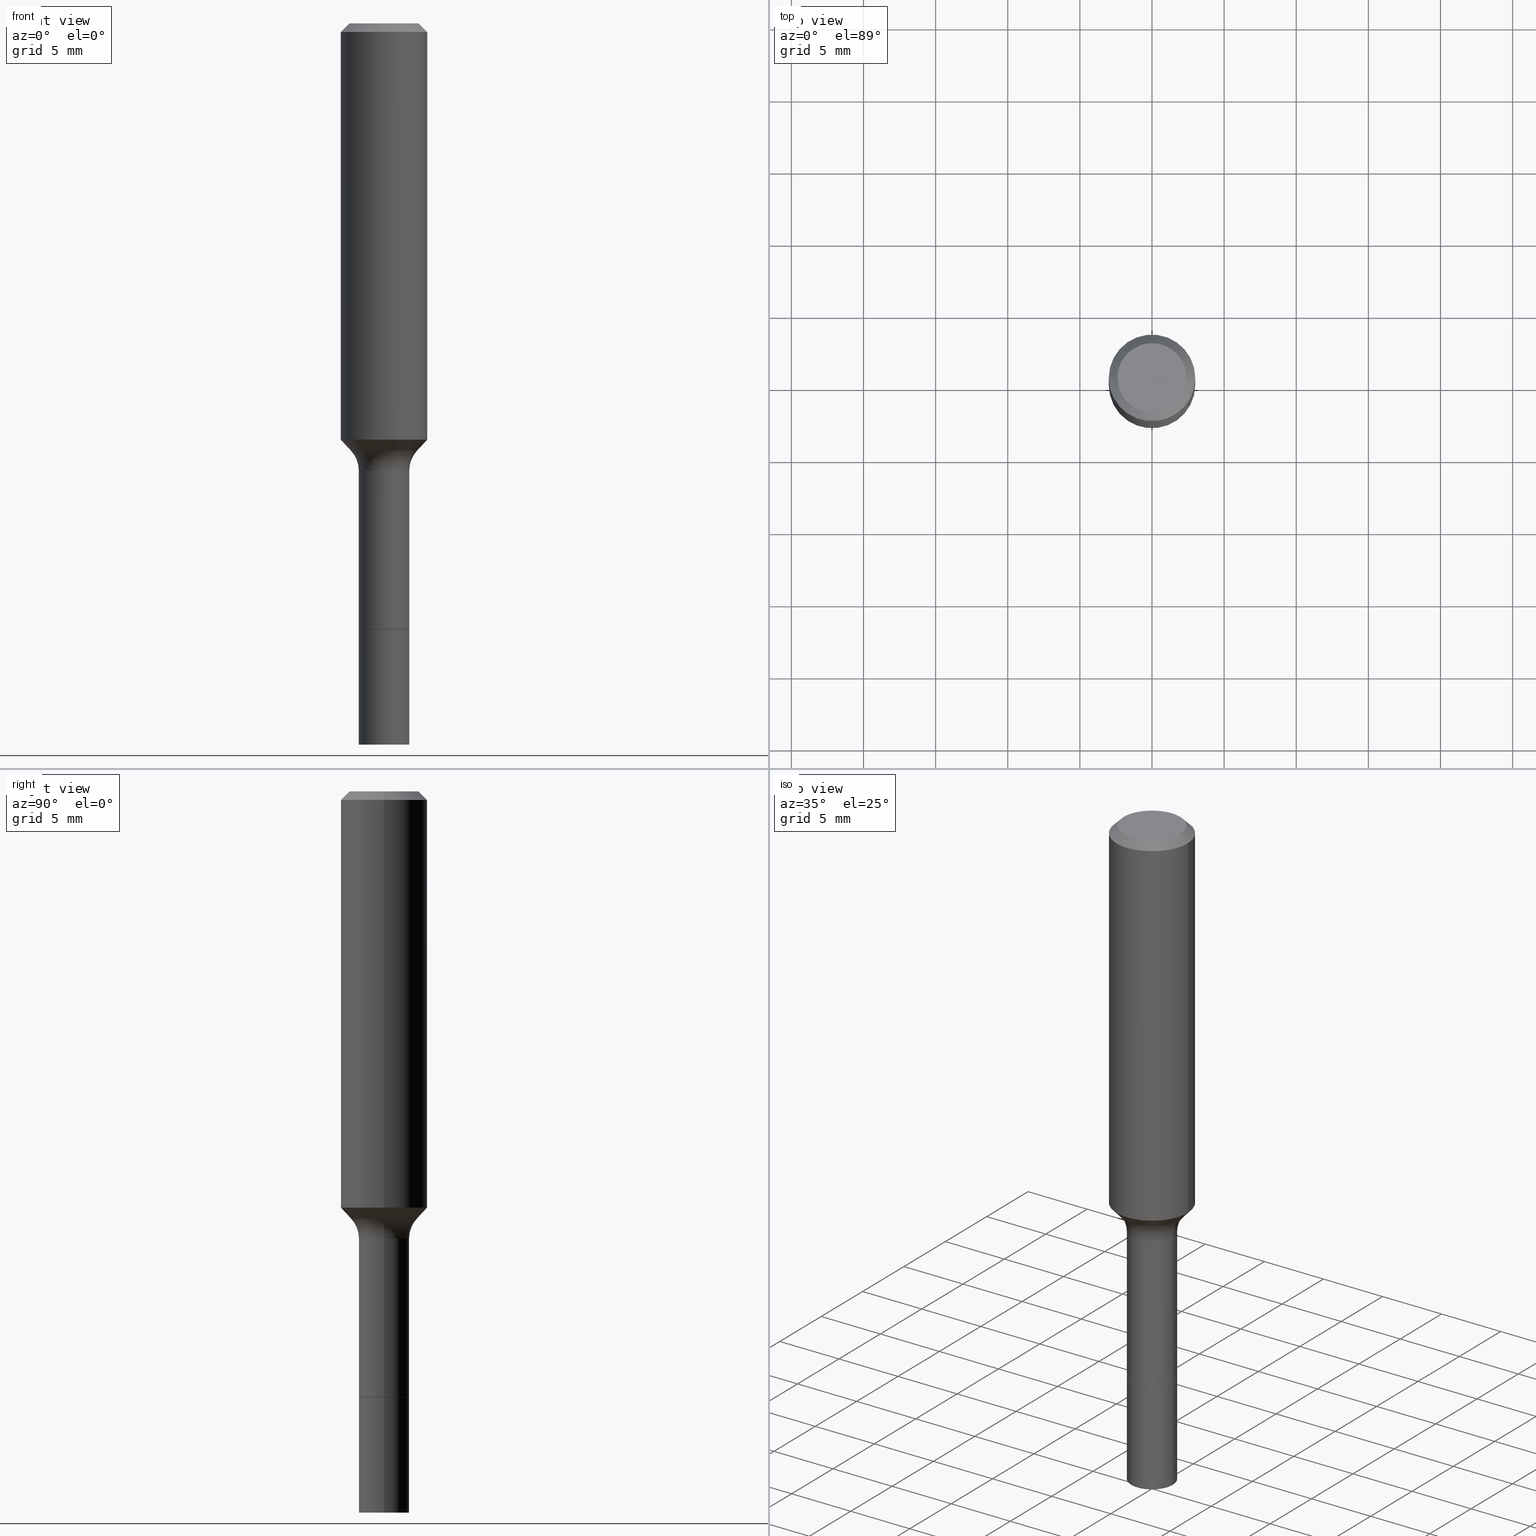
[diagram: canonical four-view strip — front | top / right | iso, engineering-drawing reading convention]
A machine part, canonical four-view strip (front | top / right | iso — engineering-drawing reading convention). The complete STEP part file that produces these views, byte-faithful:
ISO-10303-21;
HEADER;
FILE_DESCRIPTION (( 'STEP AP203' ),
    '1' );
FILE_NAME ('67080.STEP',
    '2025-04-01T15:27:49',
    ( '' ),
    ( '' ),
    'SwSTEP 2.0',
    'SolidWorks 2024',
    '' );
FILE_SCHEMA (( 'CONFIG_CONTROL_DESIGN' ));
ENDSEC;

DATA;
#1 = ORIENTED_EDGE ( 'NONE', *, *, #37, .F. ) ;
#2 = AXIS2_PLACEMENT_3D ( 'NONE', #446, #323, #363 ) ;
#3 = DIRECTION ( 'NONE',  ( 2.438088387897960049E-29, -3.491481338843145188E-15, -1.000000000000000000 ) ) ;
#4 = LOCAL_TIME ( 11, 27, 49.00000000000000000, #188 ) ;
#5 = ORIENTED_EDGE ( 'NONE', *, *, #37, .T. ) ;
#6 = FACE_OUTER_BOUND ( 'NONE', #489, .T. ) ;
#7 = CARTESIAN_POINT ( 'NONE',  ( 0.1180999999999999966, -9.071566814582237199E-16, -0.02362000000000014435 ) ) ;
#8 = ADVANCED_FACE ( 'NONE', ( #260 ), #307, .T. ) ;
#9 = ADVANCED_FACE ( 'NONE', ( #427 ), #217, .T. ) ;
#10 = ORIENTED_EDGE ( 'NONE', *, *, #152, .T. ) ;
#11 = DIRECTION ( 'NONE',  ( 1.000000000000000000, -6.982962677686273810E-15, 0.000000000000000000 ) ) ;
#12 = DESIGN_CONTEXT ( 'detailed design', #294, 'design' ) ;
#13 = CIRCLE ( 'NONE', #172, 0.1180999999999999966 ) ;
#14 = CC_DESIGN_APPROVAL ( #444, ( #251 ) ) ;
#15 = LINE ( 'NONE', #315, #287 ) ;
#16 = DIRECTION ( 'NONE',  ( 1.000000000000000000, -6.982962677686273810E-15, 0.000000000000000000 ) ) ;
#17 = CYLINDRICAL_SURFACE ( 'NONE', #451, 0.06889999999999997515 ) ;
#18 = PRODUCT ( '67080', '67080', '', ( #183 ) ) ;
#19 = CARTESIAN_POINT ( 'NONE',  ( 2.984694677948959472E-29, -4.261352974058059028E-15, -1.220499999999999918 ) ) ;
#20 = DIRECTION ( 'NONE',  ( -2.445468806185136597E-29, 3.491481338843145583E-15, 1.000000000000000000 ) ) ;
#21 = APPROVAL_ROLE ( '' ) ;
#22 = APPLICATION_CONTEXT ( 'configuration controlled 3d designs of mechanical parts and assemblies' ) ;
#23 = DIRECTION ( 'NONE',  ( -2.445468806185136877E-29, 3.491481338843145188E-15, 1.000000000000000000 ) ) ;
#24 = DIRECTION ( 'NONE',  ( -1.000000000000000000, 6.982962677686266711E-15, 0.000000000000000000 ) ) ;
#25 = CARTESIAN_POINT ( 'NONE',  ( 4.042359936624030960E-29, -5.771418653107719568E-15, -1.653000000000000025 ) ) ;
#26 = AXIS2_PLACEMENT_3D ( 'NONE', #111, #440, #288 ) ;
#27 = DATE_AND_TIME ( #327, #386 ) ;
#28 = UNCERTAINTY_MEASURE_WITH_UNIT (LENGTH_MEASURE( 1.000000000000000082E-05 ), #381, 'distance_accuracy_value', 'NONE');
#29 = EDGE_CURVE ( 'NONE', #433, #173, #382, .T. ) ;
#30 = CARTESIAN_POINT ( 'NONE',  ( 0.06840000000000000246, -6.250799040930883381E-15, -1.653500000000000192 ) ) ;
#31 = CC_DESIGN_APPROVAL ( #518, ( #324 ) ) ;
#32 = AXIS2_PLACEMENT_3D ( 'NONE', #53, #488, #212 ) ;
#33 = CARTESIAN_POINT ( 'NONE',  ( 0.000000000000000000, 0.000000000000000000, 0.000000000000000000 ) ) ;
#34 = LOCAL_TIME ( 11, 27, 49.00000000000000000, #185 ) ;
#35 = PERSON_AND_ORGANIZATION_ROLE ( 'classification_officer' ) ;
#36 = DIRECTION ( 'NONE',  ( 1.000000000000000000, -6.982962677686267499E-15, 4.875432709231658792E-29 ) ) ;
#37 = EDGE_CURVE ( 'NONE', #275, #219, #176, .T. ) ;
#38 = ORIENTED_EDGE ( 'NONE', *, *, #203, .T. ) ;
#39 = ORIENTED_EDGE ( 'NONE', *, *, #196, .T. ) ;
#40 = CARTESIAN_POINT ( 'NONE',  ( -0.06890000000000001679, -4.526821868644179362E-15, -1.653000000000000025 ) ) ;
#41 = VERTEX_POINT ( 'NONE', #106 ) ;
#42 = CC_DESIGN_DATE_AND_TIME_ASSIGNMENT ( #27, #477, ( #324 ) ) ;
#43 = FACE_OUTER_BOUND ( 'NONE', #422, .T. ) ;
#44 = ORIENTED_EDGE ( 'NONE', *, *, #203, .F. ) ;
#45 = CYLINDRICAL_SURFACE ( 'NONE', #149, 0.06890000000000007230 ) ;
#46 = ORIENTED_EDGE ( 'NONE', *, *, #286, .T. ) ;
#47 = AXIS2_PLACEMENT_3D ( 'NONE', #268, #178, #143 ) ;
#48 = DIRECTION ( 'NONE',  ( -2.445468806185136597E-29, 3.491481338843145583E-15, 1.000000000000000000 ) ) ;
#49 = ADVANCED_FACE ( 'NONE', ( #431 ), #138, .F. ) ;
#50 = ADVANCED_FACE ( 'NONE', ( #102 ), #72, .T. ) ;
#51 = DIRECTION ( 'NONE',  ( 2.445468806185136597E-29, -3.491481338843145583E-15, -1.000000000000000000 ) ) ;
#52 = DIRECTION ( 'NONE',  ( -2.445468806185136597E-29, 3.491481338843145583E-15, 1.000000000000000000 ) ) ;
#53 = CARTESIAN_POINT ( 'NONE',  ( 4.813905344975441835E-29, -6.872981015512731707E-15, -1.968500000000000139 ) ) ;
#54 = ORIENTED_EDGE ( 'NONE', *, *, #234, .F. ) ;
#55 = CARTESIAN_POINT ( 'NONE',  ( 4.813905344975441835E-29, -6.872981015512731707E-15, -1.968500000000000139 ) ) ;
#56 =( NAMED_UNIT ( * ) PLANE_ANGLE_UNIT ( ) SI_UNIT ( $, .RADIAN. ) );
#57 = DIRECTION ( 'NONE',  ( 1.000000000000000000, -6.982962677686267499E-15, 4.876176775795935793E-29 ) ) ;
#58 = CARTESIAN_POINT ( 'NONE',  ( 0.06889999999999996128, -4.742479102550642766E-15, -1.220499999999999918 ) ) ;
#59 = FACE_OUTER_BOUND ( 'NONE', #392, .T. ) ;
#60 = AXIS2_PLACEMENT_3D ( 'NONE', #222, #51, #347 ) ;
#61 = APPROVAL_DATE_TIME ( #270, #247 ) ;
#62 = AXIS2_PLACEMENT_3D ( 'NONE', #313, #107, #393 ) ;
#63 = DIRECTION ( 'NONE',  ( -2.445468806185136877E-29, 3.491481338843145188E-15, 1.000000000000000000 ) ) ;
#64 = DIRECTION ( 'NONE',  ( 1.000000000000000000, -6.982962677686267499E-15, 0.000000000000000000 ) ) ;
#65 = DIRECTION ( 'NONE',  ( 0.000000000000000000, 0.000000000000000000, 1.000000000000000000 ) ) ;
#66 = VERTEX_POINT ( 'NONE', #58 ) ;
#67 = CARTESIAN_POINT ( 'NONE',  ( 5.776197320209328408E-31, -8.246878922347560526E-17, -0.02362000000000014435 ) ) ;
#68 = DIRECTION ( 'NONE',  ( -2.445468806185136877E-29, 3.491481338843145188E-15, 1.000000000000000000 ) ) ;
#69 = CARTESIAN_POINT ( 'NONE',  ( 0.1180999999999999966, -8.926936027602933910E-16, -0.02362000000000014435 ) ) ;
#70 = DIRECTION ( 'NONE',  ( -0.7071067811865460184, 2.468850131082241283E-15, -0.7071067811865490160 ) ) ;
#71 = EDGE_CURVE ( 'NONE', #151, #66, #15, .T. ) ;
#72 = CONICAL_SURFACE ( 'NONE', #47, 0.06840000000000000246, 0.7853981633972946241 ) ;
#73 = VECTOR ( 'NONE', #514, 39.37007874015748143 ) ;
#74 = CC_DESIGN_PERSON_AND_ORGANIZATION_ASSIGNMENT ( #388, #316, ( #264 ) ) ;
#75 = DIRECTION ( 'NONE',  ( 7.105427357601001859E-15, 1.000000000000000000, -3.491481338843145583E-15 ) ) ;
#76 = DIRECTION ( 'NONE',  ( -2.445468806185136597E-29, 3.491481338843145583E-15, 1.000000000000000000 ) ) ;
#77 = CC_DESIGN_SECURITY_CLASSIFICATION ( #324, ( #251 ) ) ;
#78 = CIRCLE ( 'NONE', #474, 0.09447999999999998066 ) ;
#79 = DIRECTION ( 'NONE',  ( -2.445468806185136597E-29, 3.491481338843145583E-15, 1.000000000000000000 ) ) ;
#80 = ORIENTED_EDGE ( 'NONE', *, *, #406, .T. ) ;
#81 = DIRECTION ( 'NONE',  ( -2.445468806185136597E-29, 3.491481338843145583E-15, 1.000000000000000000 ) ) ;
#82 = ORIENTED_EDGE ( 'NONE', *, *, #375, .T. ) ;
#83 = DIRECTION ( 'NONE',  ( -2.445468806185136597E-29, 3.491481338843145583E-15, 1.000000000000000000 ) ) ;
#84 = EDGE_CURVE ( 'NONE', #66, #173, #352, .T. ) ;
#85 = VECTOR ( 'NONE', #255, 39.37007874015748854 ) ;
#86 = ORIENTED_EDGE ( 'NONE', *, *, #426, .F. ) ;
#87 = DIRECTION ( 'NONE',  ( 1.000000000000000000, -6.982962677686269077E-15, 0.000000000000000000 ) ) ;
#88 = ORIENTED_EDGE ( 'NONE', *, *, #340, .T. ) ;
#89 = DIRECTION ( 'NONE',  ( -2.445468806185136597E-29, 3.491481338843145583E-15, 1.000000000000000000 ) ) ;
#90 = ORIENTED_EDGE ( 'NONE', *, *, #182, .T. ) ;
#91 = DIRECTION ( 'NONE',  ( 1.000000000000000000, -6.982962677686262766E-15, 0.000000000000000000 ) ) ;
#92 = EDGE_CURVE ( 'NONE', #310, #500, #365, .T. ) ;
#93 = DIRECTION ( 'NONE',  ( -2.445468806185136597E-29, 3.491481338843145583E-15, 1.000000000000000000 ) ) ;
#94 = ORIENTED_EDGE ( 'NONE', *, *, #356, .F. ) ;
#95 = AXIS2_PLACEMENT_3D ( 'NONE', #378, #419, #410 ) ;
#96 = AXIS2_PLACEMENT_3D ( 'NONE', #413, #490, #126 ) ;
#97 = ORIENTED_EDGE ( 'NONE', *, *, #394, .T. ) ;
#98 = APPLICATION_PROTOCOL_DEFINITION ( 'international standard', 'config_control_design', 1994, #294 ) ;
#99 = DIRECTION ( 'NONE',  ( -2.445468806185136597E-29, 3.491481338843145583E-15, 1.000000000000000000 ) ) ;
#100 = CALENDAR_DATE ( 2025, 1, 4 ) ;
#101 = ADVANCED_FACE ( 'NONE', ( #411 ), #160, .T. ) ;
#102 = FACE_OUTER_BOUND ( 'NONE', #339, .T. ) ;
#103 = VECTOR ( 'NONE', #497, 39.37007874015748143 ) ;
#104 =( NAMED_UNIT ( * ) SI_UNIT ( $, .STERADIAN. ) SOLID_ANGLE_UNIT ( ) );
#105 = AXIS2_PLACEMENT_3D ( 'NONE', #135, #93, #87 ) ;
#106 = CARTESIAN_POINT ( 'NONE',  ( -0.1181000000000001354, -3.127963074443632070E-15, -1.136226621417590010 ) ) ;
#107 = DIRECTION ( 'NONE',  ( -2.445468806185136597E-29, 3.491481338843145583E-15, 1.000000000000000000 ) ) ;
#108 =( LENGTH_UNIT ( ) NAMED_UNIT ( * ) SI_UNIT ( $, .METRE. ) );
#109 = EDGE_CURVE ( 'NONE', #292, #439, #367, .T. ) ;
#110 = ADVANCED_FACE ( 'NONE', ( #280 ), #284, .F. ) ;
#111 = CARTESIAN_POINT ( 'NONE',  ( 3.772893820736570314E-46, -5.386692455541008845E-32, -1.542810037565835988E-17 ) ) ;
#112 = AXIS2_PLACEMENT_3D ( 'NONE', #33, #325, #278 ) ;
#113 = DIRECTION ( 'NONE',  ( 1.000000000000000000, -6.982962677686266711E-15, 0.000000000000000000 ) ) ;
#114 = CARTESIAN_POINT ( 'NONE',  ( 4.043582671027123762E-29, -5.773164393777141860E-15, -1.653500000000000192 ) ) ;
#115 = FACE_OUTER_BOUND ( 'NONE', #515, .T. ) ;
#116 = DATE_AND_TIME ( #442, #290 ) ;
#117 = AXIS2_PLACEMENT_3D ( 'NONE', #19, #235, #360 ) ;
#118 = APPROVAL_DATE_TIME ( #116, #518 ) ;
#119 = DIRECTION ( 'NONE',  ( -0.6819983600624967002, 7.399397606724278688E-15, 0.7313537016191720141 ) ) ;
#120 = ORIENTED_EDGE ( 'NONE', *, *, #84, .F. ) ;
#121 = CARTESIAN_POINT ( 'NONE',  ( 2.851270220716778580E-29, -4.070858210275671756E-15, -1.165940131195000173 ) ) ;
#122 = LINE ( 'NONE', #374, #289 ) ;
#123 = ADVANCED_FACE ( 'NONE', ( #389 ), #17, .T. ) ;
#124 = MANIFOLD_SOLID_BREP ( 'Body-Move/Copy2[2]', #317 ) ;
#125 = ORIENTED_EDGE ( 'NONE', *, *, #234, .T. ) ;
#126 = DIRECTION ( 'NONE',  ( 1.000000000000000000, -6.982962677686265922E-15, 4.876176775795935793E-29 ) ) ;
#127 = MANIFOLD_SOLID_BREP ( 'Body-Move/Copy2[1]', #147 ) ;
#128 = AXIS2_PLACEMENT_3D ( 'NONE', #226, #99, #11 ) ;
#129 = CIRCLE ( 'NONE', #2, 0.08000000000000000167 ) ;
#130 = VERTEX_POINT ( 'NONE', #481 ) ;
#131 = ORGANIZATION ( 'UNSPECIFIED', 'UNSPECIFIED', '' ) ;
#132 = DIRECTION ( 'NONE',  ( 1.000000000000000000, -6.982962677686269866E-15, 0.000000000000000000 ) ) ;
#133 = ADVANCED_FACE ( 'NONE', ( #6 ), #230, .T. ) ;
#134 = ORIENTED_EDGE ( 'NONE', *, *, #204, .T. ) ;
#135 = CARTESIAN_POINT ( 'NONE',  ( 2.778606759433844860E-29, -3.967114045376311056E-15, -1.136226621417590010 ) ) ;
#136 = ORIENTED_EDGE ( 'NONE', *, *, #475, .T. ) ;
#137 = DIRECTION ( 'NONE',  ( 1.000000000000000000, -6.982962677686266711E-15, 0.000000000000000000 ) ) ;
#138 = TOROIDAL_SURFACE ( 'NONE', #466, 0.1488999999999999491, 0.08000000000000000167 ) ;
#139 = ORIENTED_EDGE ( 'NONE', *, *, #415, .F. ) ;
#140 = FACE_OUTER_BOUND ( 'NONE', #364, .T. ) ;
#141 = ORIENTED_EDGE ( 'NONE', *, *, #84, .T. ) ;
#142 = CC_DESIGN_PERSON_AND_ORGANIZATION_ASSIGNMENT ( #285, #35, ( #324 ) ) ;
#143 = DIRECTION ( 'NONE',  ( 1.000000000000000000, -6.982962677686273810E-15, 0.000000000000000000 ) ) ;
#144 = PERSON_AND_ORGANIZATION ( #242, #131 ) ;
#145 = EDGE_LOOP ( 'NONE', ( #249, #86, #494, #136 ) ) ;
#146 = DIRECTION ( 'NONE',  ( -2.445468806185136597E-29, 3.491481338843145583E-15, 1.000000000000000000 ) ) ;
#147 = CLOSED_SHELL ( 'NONE', ( #166, #395, #387, #110 ) ) ;
#148 = CARTESIAN_POINT ( 'NONE',  ( 0.000000000000000000, 0.000000000000000000, 0.000000000000000000 ) ) ;
#149 = AXIS2_PLACEMENT_3D ( 'NONE', #262, #83, #253 ) ;
#150 = EDGE_CURVE ( 'NONE', #500, #433, #450, .T. ) ;
#151 = VERTEX_POINT ( 'NONE', #257 ) ;
#152 = EDGE_CURVE ( 'NONE', #213, #41, #409, .T. ) ;
#153 = DIRECTION ( 'NONE',  ( -2.445468806185136597E-29, 3.491481338843145583E-15, 1.000000000000000000 ) ) ;
#154 = DIRECTION ( 'NONE',  ( 0.7071067811865460184, -7.319954787623251312E-15, -0.7071067811865490160 ) ) ;
#155 = DIRECTION ( 'NONE',  ( 1.000000000000000000, -6.982962677686273810E-15, 0.000000000000000000 ) ) ;
#156 = COORDINATED_UNIVERSAL_TIME_OFFSET ( 5, 0, .BEHIND. ) ;
#157 = CARTESIAN_POINT ( 'NONE',  ( 7.545787641473140628E-46, -1.077338491108201769E-31, -3.085620075131671975E-17 ) ) ;
#158 = CIRCLE ( 'NONE', #32, 0.06890000000000012781 ) ;
#159 = DIRECTION ( 'NONE',  ( 2.445468806185136597E-29, -3.491481338843145583E-15, -1.000000000000000000 ) ) ;
#160 = CYLINDRICAL_SURFACE ( 'NONE', #112, 0.1181000000000000660 ) ;
#161 = PERSON_AND_ORGANIZATION ( #242, #131 ) ;
#162 = SECURITY_CLASSIFICATION_LEVEL ( 'unclassified' ) ;
#163 = VECTOR ( 'NONE', #154, 39.37007874015748143 ) ;
#164 = EDGE_CURVE ( 'NONE', #500, #310, #437, .T. ) ;
#165 = ORIENTED_EDGE ( 'NONE', *, *, #298, .T. ) ;
#166 = ADVANCED_FACE ( 'NONE', ( #140 ), #350, .T. ) ;
#167 = DIRECTION ( 'NONE',  ( -2.445468806185136597E-29, 3.491481338843145583E-15, 1.000000000000000000 ) ) ;
#168 = EDGE_LOOP ( 'NONE', ( #301, #458 ) ) ;
#169 = FACE_OUTER_BOUND ( 'NONE', #168, .T. ) ;
#170 = EDGE_LOOP ( 'NONE', ( #372, #233, #80, #54 ) ) ;
#171 = FACE_OUTER_BOUND ( 'NONE', #512, .T. ) ;
#172 = AXIS2_PLACEMENT_3D ( 'NONE', #398, #81, #113 ) ;
#173 = VERTEX_POINT ( 'NONE', #501 ) ;
#174 = EDGE_LOOP ( 'NONE', ( #39, #82 ) ) ;
#175 = CARTESIAN_POINT ( 'NONE',  ( 2.851270220716778580E-29, -4.070858210275671756E-15, -1.165940131195000173 ) ) ;
#176 = LINE ( 'NONE', #469, #103 ) ;
#177 = DIRECTION ( 'NONE',  ( 1.000000000000000000, 0.000000000000000000, 0.000000000000000000 ) ) ;
#178 = DIRECTION ( 'NONE',  ( -2.445468806185136597E-29, 3.491481338843145583E-15, 1.000000000000000000 ) ) ;
#179 = DIRECTION ( 'NONE',  ( 1.000000000000000000, -6.982962677686265922E-15, 0.000000000000000000 ) ) ;
#180 = CIRCLE ( 'NONE', #503, 0.08000000000000000167 ) ;
#181 = AXIS2_PLACEMENT_3D ( 'NONE', #335, #89, #192 ) ;
#182 = EDGE_CURVE ( 'NONE', #275, #449, #328, .T. ) ;
#183 = MECHANICAL_CONTEXT ( 'NONE', #22, 'mechanical' ) ;
#184 = ORIENTED_EDGE ( 'NONE', *, *, #394, .F. ) ;
#185 = COORDINATED_UNIVERSAL_TIME_OFFSET ( 5, 0, .BEHIND. ) ;
#186 = ORIENTED_EDGE ( 'NONE', *, *, #182, .F. ) ;
#187 = CARTESIAN_POINT ( 'NONE',  ( 4.043582671027123201E-29, -5.773164393777141072E-15, -1.653499999999999970 ) ) ;
#188 = COORDINATED_UNIVERSAL_TIME_OFFSET ( 5, 0, .BEHIND. ) ;
#189 = ADVANCED_FACE ( 'NONE', ( #276 ), #361, .T. ) ;
#190 = EDGE_LOOP ( 'NONE', ( #517, #134, #229, #139 ) ) ;
#191 = CARTESIAN_POINT ( 'NONE',  ( 4.042359936624030960E-29, -5.771418653107719568E-15, -1.653000000000000025 ) ) ;
#192 = DIRECTION ( 'NONE',  ( 1.000000000000000000, -6.982962677686266711E-15, 4.876176775795936353E-29 ) ) ;
#193 = AXIS2_PLACEMENT_3D ( 'NONE', #67, #159, #24 ) ;
#194 = PERSON_AND_ORGANIZATION_ROLE ( 'creator' ) ;
#195 = DATE_AND_TIME ( #403, #4 ) ;
#196 = EDGE_CURVE ( 'NONE', #329, #219, #246, .T. ) ;
#197 = CARTESIAN_POINT ( 'NONE',  ( 2.984694677948959472E-29, -4.261352974058059028E-15, -1.220499999999999918 ) ) ;
#198 = VECTOR ( 'NONE', #470, 39.37007874015748143 ) ;
#199 = DIRECTION ( 'NONE',  ( -1.000000000000000000, 6.982962677686265922E-15, -4.876176775795935793E-29 ) ) ;
#200 = EDGE_LOOP ( 'NONE', ( #265, #125, #331, #353 ) ) ;
#201 = APPROVAL_ROLE ( '' ) ;
#202 = CARTESIAN_POINT ( 'NONE',  ( 0.09447999999999998066, -7.704367267948738690E-16, -3.085620075131172158E-17 ) ) ;
#203 = EDGE_CURVE ( 'NONE', #449, #329, #319, .T. ) ;
#204 = EDGE_CURVE ( 'NONE', #205, #505, #207, .T. ) ;
#205 = VERTEX_POINT ( 'NONE', #269 ) ;
#206 = CARTESIAN_POINT ( 'NONE',  ( 2.778606759433844860E-29, -3.967114045376311056E-15, -1.136226621417590010 ) ) ;
#207 = CIRCLE ( 'NONE', #62, 0.09039170387046643884 ) ;
#208 = AXIS2_PLACEMENT_3D ( 'NONE', #266, #52, #272 ) ;
#209 = AXIS2_PLACEMENT_3D ( 'NONE', #148, #65, #177 ) ;
#210 = CIRCLE ( 'NONE', #453, 0.1180999999999999966 ) ;
#211 = EDGE_LOOP ( 'NONE', ( #480, #349, #88, #299 ) ) ;
#212 = DIRECTION ( 'NONE',  ( 1.000000000000000000, -6.982962677686267499E-15, 0.000000000000000000 ) ) ;
#213 = VERTEX_POINT ( 'NONE', #434 ) ;
#214 = CARTESIAN_POINT ( 'NONE',  ( 4.813905344975441835E-29, -6.872981015512731707E-15, -1.968500000000000139 ) ) ;
#215 = ORIENTED_EDGE ( 'NONE', *, *, #445, .F. ) ;
#216 = CARTESIAN_POINT ( 'NONE',  ( 0.1181000000000000660, -8.246878922347485584E-16, 5.758764772215003944E-30 ) ) ;
#217 = CONICAL_SURFACE ( 'NONE', #128, 0.06840000000000000246, 0.7853981633972946241 ) ;
#218 = AXIS2_PLACEMENT_3D ( 'NONE', #244, #400, #199 ) ;
#219 = VERTEX_POINT ( 'NONE', #428 ) ;
#220 = CARTESIAN_POINT ( 'NONE',  ( 0.06890000000000000291, -6.254290522269724810E-15, -1.653499999999999970 ) ) ;
#221 = APPROVAL_PERSON_ORGANIZATION ( #358, #518, #201 ) ;
#222 = CARTESIAN_POINT ( 'NONE',  ( 5.776197320209328408E-31, -8.246878922347560526E-17, -0.02362000000000014435 ) ) ;
#223 = DIRECTION ( 'NONE',  ( 1.000000000000000000, -6.982962677686262766E-15, 0.000000000000000000 ) ) ;
#224 = FACE_OUTER_BOUND ( 'NONE', #456, .T. ) ;
#225 = ADVANCED_FACE ( 'NONE', ( #59 ), #492, .T. ) ;
#226 = CARTESIAN_POINT ( 'NONE',  ( 4.043582671027123762E-29, -5.773164393777141860E-15, -1.653500000000000192 ) ) ;
#227 = CARTESIAN_POINT ( 'NONE',  ( 2.851270220716778580E-29, -4.070858210275671756E-15, -1.165940131195000173 ) ) ;
#228 = APPROVAL_STATUS ( 'not_yet_approved' ) ;
#229 = ORIENTED_EDGE ( 'NONE', *, *, #356, .T. ) ;
#230 = CONICAL_SURFACE ( 'NONE', #467, 0.09039170387046643884, 0.7504915783575593080 ) ;
#231 = APPROVAL_PERSON_ORGANIZATION ( #346, #247, #506 ) ;
#232 = LINE ( 'NONE', #314, #468 ) ;
#233 = ORIENTED_EDGE ( 'NONE', *, *, #164, .T. ) ;
#234 = EDGE_CURVE ( 'NONE', #433, #151, #259, .T. ) ;
#235 = DIRECTION ( 'NONE',  ( -2.445468806185136597E-29, 3.491481338843145583E-15, 1.000000000000000000 ) ) ;
#236 = DIRECTION ( 'NONE',  ( -2.445468806185136597E-29, 3.491481338843145583E-15, 1.000000000000000000 ) ) ;
#237 = COORDINATED_UNIVERSAL_TIME_OFFSET ( 5, 0, .BEHIND. ) ;
#238 = CIRCLE ( 'NONE', #513, 0.09039170387046643884 ) ;
#239 = PERSON_AND_ORGANIZATION_ROLE ( 'design_supplier' ) ;
#240 = DIRECTION ( 'NONE',  ( -1.000000000000000000, 7.105427357601005014E-15, 0.000000000000000000 ) ) ;
#241 = CC_DESIGN_PERSON_AND_ORGANIZATION_ASSIGNMENT ( #291, #194, ( #251 ) ) ;
#242 = PERSON ( 'UNSPECIFIED', 'UNSPECIFIED', 'UNSPECIFIED', ('UNSPECIFIED'), ('UNSPECIFIED'), ('UNSPECIFIED') ) ;
#243 = CARTESIAN_POINT ( 'NONE',  ( -0.06890000000000012781, -5.833508759706226453E-15, -1.968500000000000139 ) ) ;
#244 = CARTESIAN_POINT ( 'NONE',  ( 4.043582671027123201E-29, -5.773164393777141072E-15, -1.653499999999999970 ) ) ;
#245 = DIRECTION ( 'NONE',  ( 1.000000000000000000, -6.982962677686267499E-15, 4.883557194083113462E-29 ) ) ;
#246 = CIRCLE ( 'NONE', #493, 0.06890000000000000291 ) ;
#247 = APPROVAL ( #228, 'UNSPECIFIED' ) ;
#248 = EDGE_LOOP ( 'NONE', ( #312, #252, #447, #404 ) ) ;
#249 = ORIENTED_EDGE ( 'NONE', *, *, #109, .F. ) ;
#250 = AXIS2_PLACEMENT_3D ( 'NONE', #206, #405, #418 ) ;
#251 = PRODUCT_DEFINITION_FORMATION_WITH_SPECIFIED_SOURCE ( 'ANY', '', #18, .NOT_KNOWN. ) ;
#252 = ORIENTED_EDGE ( 'NONE', *, *, #305, .T. ) ;
#253 = DIRECTION ( 'NONE',  ( 1.000000000000000000, -6.982962677686273021E-15, 0.000000000000000000 ) ) ;
#254 = ORIENTED_EDGE ( 'NONE', *, *, #322, .F. ) ;
#255 = DIRECTION ( 'NONE',  ( 0.6819983600624967002, -2.208861293262458054E-15, 0.7313537016191720141 ) ) ;
#256 = ORIENTED_EDGE ( 'NONE', *, *, #426, .T. ) ;
#257 = CARTESIAN_POINT ( 'NONE',  ( 0.06890000000000001679, -6.252544781600303306E-15, -1.653000000000000025 ) ) ;
#258 = DIRECTION ( 'NONE',  ( -1.000000000000000000, 6.982962677686265922E-15, -4.876176775795935793E-29 ) ) ;
#259 = CIRCLE ( 'NONE', #309, 0.06890000000000001679 ) ;
#260 = FACE_OUTER_BOUND ( 'NONE', #145, .T. ) ;
#261 = DIRECTION ( 'NONE',  ( -2.445468806185136597E-29, 3.491481338843145583E-15, 1.000000000000000000 ) ) ;
#262 = CARTESIAN_POINT ( 'NONE',  ( 4.043582671027123201E-29, -5.773164393777141072E-15, -1.653499999999999970 ) ) ;
#263 = EDGE_CURVE ( 'NONE', #505, #66, #129, .T. ) ;
#264 = PRODUCT_DEFINITION ( 'UNKNOWN', '', #251, #12 ) ;
#265 = ORIENTED_EDGE ( 'NONE', *, *, #29, .F. ) ;
#266 = CARTESIAN_POINT ( 'NONE',  ( 4.043582671027123201E-29, -5.773164393777141072E-15, -1.653499999999999970 ) ) ;
#267 = PERSON_AND_ORGANIZATION_ROLE ( 'design_owner' ) ;
#268 = CARTESIAN_POINT ( 'NONE',  ( 4.043582671027123762E-29, -5.773164393777141860E-15, -1.653500000000000192 ) ) ;
#269 = CARTESIAN_POINT ( 'NONE',  ( -0.09039170387046635557, -3.428586524694291747E-15, -1.165940131195000173 ) ) ;
#270 = DATE_AND_TIME ( #100, #509 ) ;
#271 = ORIENTED_EDGE ( 'NONE', *, *, #29, .T. ) ;
#272 = DIRECTION ( 'NONE',  ( 1.000000000000000000, -6.982962677686273021E-15, 0.000000000000000000 ) ) ;
#273 = CIRCLE ( 'NONE', #384, 0.06890000000000000291 ) ;
#274 = DATE_TIME_ROLE ( 'creation_date' ) ;
#275 = VERTEX_POINT ( 'NONE', #243 ) ;
#276 = FACE_OUTER_BOUND ( 'NONE', #190, .T. ) ;
#277 = APPLICATION_PROTOCOL_DEFINITION ( 'international standard', 'config_control_design', 1994, #22 ) ;
#278 = DIRECTION ( 'NONE',  ( 1.000000000000000000, -6.982962677686266711E-15, 4.876176775795936353E-29 ) ) ;
#279 = CARTESIAN_POINT ( 'NONE',  ( 0.000000000000000000, 0.000000000000000000, 0.000000000000000000 ) ) ;
#280 = FACE_OUTER_BOUND ( 'NONE', #174, .T. ) ;
#281 = AXIS2_PLACEMENT_3D ( 'NONE', #55, #146, #64 ) ;
#282 = CARTESIAN_POINT ( 'NONE',  ( -0.1488999999999999491, -3.203354840511270410E-15, -1.220499999999999918 ) ) ;
#283 = ADVANCED_FACE ( 'NONE', ( #115 ), #479, .F. ) ;
#284 = PLANE ( 'NONE',  #218 ) ;
#285 = PERSON_AND_ORGANIZATION ( #242, #131 ) ;
#286 = EDGE_CURVE ( 'NONE', #205, #41, #508, .T. ) ;
#287 = VECTOR ( 'NONE', #63, 39.37007874015748143 ) ;
#288 = DIRECTION ( 'NONE',  ( -1.000000000000000000, 6.982962677686265922E-15, -4.876176775795935793E-29 ) ) ;
#289 = VECTOR ( 'NONE', #369, 39.37007874015748143 ) ;
#290 = LOCAL_TIME ( 11, 27, 49.00000000000000000, #237 ) ;
#291 = PERSON_AND_ORGANIZATION ( #242, #131 ) ;
#292 = VERTEX_POINT ( 'NONE', #202 ) ;
#293 = DIRECTION ( 'NONE',  ( -0.7071067811864388819, 7.493145998869961307E-15, 0.7071067811866561525 ) ) ;
#294 = APPLICATION_CONTEXT ( 'configuration controlled 3d designs of mechanical parts and assemblies' ) ;
#295 = EDGE_LOOP ( 'NONE', ( #390, #271, #120, #485 ) ) ;
#296 = CARTESIAN_POINT ( 'NONE',  ( 5.776197320209328408E-31, -8.246878922347560526E-17, -0.02362000000000014435 ) ) ;
#297 = AXIS2_PLACEMENT_3D ( 'NONE', #227, #20, #223 ) ;
#298 = EDGE_CURVE ( 'NONE', #439, #130, #13, .T. ) ;
#299 = ORIENTED_EDGE ( 'NONE', *, *, #475, .F. ) ;
#300 = DIRECTION ( 'NONE',  ( -2.445468806185136597E-29, 3.491481338843145583E-15, 1.000000000000000000 ) ) ;
#301 = ORIENTED_EDGE ( 'NONE', *, *, #92, .F. ) ;
#302 = LINE ( 'NONE', #482, #85 ) ;
#303 = ORIENTED_EDGE ( 'NONE', *, *, #499, .F. ) ;
#304 = ADVANCED_FACE ( 'NONE', ( #399 ), #320, .F. ) ;
#305 = EDGE_CURVE ( 'NONE', #205, #173, #180, .T. ) ;
#306 = DIRECTION ( 'NONE',  ( 1.000000000000000000, -6.982962677686262766E-15, 0.000000000000000000 ) ) ;
#307 = CONICAL_SURFACE ( 'NONE', #60, 0.1180999999999999966, 0.7853981633974461696 ) ;
#308 = DIMENSIONAL_EXPONENTS ( 1.000000000000000000, 0.000000000000000000, 0.000000000000000000, 0.000000000000000000, 0.000000000000000000, 0.000000000000000000, 0.000000000000000000 ) ;
#309 = AXIS2_PLACEMENT_3D ( 'NONE', #191, #261, #359 ) ;
#310 = VERTEX_POINT ( 'NONE', #30 ) ;
#311 = VECTOR ( 'NONE', #68, 39.37007874015748143 ) ;
#312 = ORIENTED_EDGE ( 'NONE', *, *, #204, .F. ) ;
#313 = CARTESIAN_POINT ( 'NONE',  ( 2.851270220716778580E-29, -4.070858210275671756E-15, -1.165940131195000173 ) ) ;
#314 = CARTESIAN_POINT ( 'NONE',  ( -0.1180999999999999966, 7.422191030112725094E-16, -0.02362000000000014435 ) ) ;
#315 = CARTESIAN_POINT ( 'NONE',  ( 0.06889999999999997515, -4.811261284925836399E-16, 3.359685798523398567E-30 ) ) ;
#316 = PERSON_AND_ORGANIZATION_ROLE ( 'creator' ) ;
#317 = CLOSED_SHELL ( 'NONE', ( #50, #225, #478, #133, #49, #123, #326, #304, #189, #101, #8, #283, #471, #9 ) ) ;
#318 = CARTESIAN_POINT ( 'NONE',  ( -0.06889999999999997515, 4.895639449387088515E-16, -3.389146277185628616E-30 ) ) ;
#319 = LINE ( 'NONE', #495, #198 ) ;
#320 = TOROIDAL_SURFACE ( 'NONE', #430, 0.1488999999999999491, 0.08000000000000000167 ) ;
#321 = CARTESIAN_POINT ( 'NONE',  ( -0.06840000000000000246, -5.284503935343122016E-15, -1.653500000000000192 ) ) ;
#322 = EDGE_CURVE ( 'NONE', #292, #491, #78, .T. ) ;
#323 = DIRECTION ( 'NONE',  ( -6.982962677686266711E-15, -1.000000000000000000, 3.491481338843145583E-15 ) ) ;
#324 = SECURITY_CLASSIFICATION ( '', '', #162 ) ;
#325 = DIRECTION ( 'NONE',  ( -2.445468806185136597E-29, 3.491481338843145583E-15, 1.000000000000000000 ) ) ;
#326 = ADVANCED_FACE ( 'NONE', ( #371 ), #486, .T. ) ;
#327 = CALENDAR_DATE ( 2025, 1, 4 ) ;
#328 = CIRCLE ( 'NONE', #281, 0.06890000000000012781 ) ;
#329 = VERTEX_POINT ( 'NONE', #220 ) ;
#330 = PLANE ( 'NONE',  #337 ) ;
#331 = ORIENTED_EDGE ( 'NONE', *, *, #71, .T. ) ;
#332 = PLANE ( 'NONE',  #96 ) ;
#333 = CC_DESIGN_DATE_AND_TIME_ASSIGNMENT ( #465, #274, ( #264 ) ) ;
#334 = ORIENTED_EDGE ( 'NONE', *, *, #298, .F. ) ;
#335 = CARTESIAN_POINT ( 'NONE',  ( 0.000000000000000000, 0.000000000000000000, 0.000000000000000000 ) ) ;
#336 = VECTOR ( 'NONE', #23, 39.37007874015748143 ) ;
#337 = AXIS2_PLACEMENT_3D ( 'NONE', #214, #3, #258 ) ;
#338 = APPROVAL_PERSON_ORGANIZATION ( #432, #444, #21 ) ;
#339 = EDGE_LOOP ( 'NONE', ( #417, #463, #483, #368 ) ) ;
#340 = EDGE_CURVE ( 'NONE', #213, #439, #423, .T. ) ;
#341 = EDGE_LOOP ( 'NONE', ( #487, #215, #376, #141 ) ) ;
#342 = DIRECTION ( 'NONE',  ( -2.445468806185136597E-29, 3.491481338843145583E-15, 1.000000000000000000 ) ) ;
#343 = DIRECTION ( 'NONE',  ( 1.000000000000000000, -6.982962677686267499E-15, 4.883557194083113462E-29 ) ) ;
#344 = CARTESIAN_POINT ( 'NONE',  ( 0.09039170387046635557, -4.702060104775607440E-15, -1.165940131195000173 ) ) ;
#345 = AXIS2_PLACEMENT_3D ( 'NONE', #114, #76, #155 ) ;
#346 = PERSON_AND_ORGANIZATION ( #242, #131 ) ;
#347 = DIRECTION ( 'NONE',  ( -1.000000000000000000, 6.982962677686266711E-15, 0.000000000000000000 ) ) ;
#348 = CALENDAR_DATE ( 2025, 1, 4 ) ;
#349 = ORIENTED_EDGE ( 'NONE', *, *, #415, .T. ) ;
#350 = CYLINDRICAL_SURFACE ( 'NONE', #208, 0.06890000000000007230 ) ;
#351 = LENGTH_MEASURE_WITH_UNIT ( LENGTH_MEASURE( 0.02539999999999999897 ), #108 );
#352 = CIRCLE ( 'NONE', #117, 0.06889999999999996128 ) ;
#353 = ORIENTED_EDGE ( 'NONE', *, *, #435, .F. ) ;
#354 = AXIS2_PLACEMENT_3D ( 'NONE', #377, #236, #16 ) ;
#355 = CC_DESIGN_PERSON_AND_ORGANIZATION_ASSIGNMENT ( #161, #239, ( #251 ) ) ;
#356 = EDGE_CURVE ( 'NONE', #505, #213, #302, .T. ) ;
#357 = SHAPE_DEFINITION_REPRESENTATION ( #502, #510 ) ;
#358 = PERSON_AND_ORGANIZATION ( #242, #131 ) ;
#359 = DIRECTION ( 'NONE',  ( 1.000000000000000000, -6.982962677686264344E-15, 0.000000000000000000 ) ) ;
#360 = DIRECTION ( 'NONE',  ( 1.000000000000000000, -6.982962677686269866E-15, 0.000000000000000000 ) ) ;
#361 = CONICAL_SURFACE ( 'NONE', #297, 0.09039170387046643884, 0.7504915783575593080 ) ;
#362 = APPROVAL_DATE_TIME ( #195, #444 ) ;
#363 = DIRECTION ( 'NONE',  ( 1.000000000000000000, -6.982962677686259611E-15, 0.000000000000000000 ) ) ;
#364 = EDGE_LOOP ( 'NONE', ( #97, #5, #424, #44 ) ) ;
#365 = CIRCLE ( 'NONE', #345, 0.06840000000000000246 ) ;
#366 = VECTOR ( 'NONE', #119, 39.37007874015748854 ) ;
#367 = LINE ( 'NONE', #69, #163 ) ;
#368 = ORIENTED_EDGE ( 'NONE', *, *, #406, .F. ) ;
#369 = DIRECTION ( 'NONE',  ( 0.7071067811864388819, -2.468850131081119129E-15, 0.7071067811866561525 ) ) ;
#370 = ORIENTED_EDGE ( 'NONE', *, *, #511, .T. ) ;
#371 = FACE_OUTER_BOUND ( 'NONE', #200, .T. ) ;
#372 = ORIENTED_EDGE ( 'NONE', *, *, #150, .F. ) ;
#373 = CARTESIAN_POINT ( 'NONE',  ( -0.06840000000000000246, -5.287153162517233217E-15, -1.653500000000000192 ) ) ;
#374 = CARTESIAN_POINT ( 'NONE',  ( 0.06840000000000000246, -6.250799040930883381E-15, -1.653500000000000192 ) ) ;
#375 = EDGE_CURVE ( 'NONE', #219, #329, #273, .T. ) ;
#376 = ORIENTED_EDGE ( 'NONE', *, *, #263, .T. ) ;
#377 = CARTESIAN_POINT ( 'NONE',  ( 4.043582671027123762E-29, -5.773164393777141860E-15, -1.653500000000000192 ) ) ;
#378 = CARTESIAN_POINT ( 'NONE',  ( 7.545787641473140628E-46, -1.077338491108201769E-31, -3.085620075131671975E-17 ) ) ;
#379 = PRODUCT_RELATED_PRODUCT_CATEGORY ( 'detail', '', ( #18 ) ) ;
#380 = ORIENTED_EDGE ( 'NONE', *, *, #445, .T. ) ;
#381 =( CONVERSION_BASED_UNIT ( 'INCH', #351 ) LENGTH_UNIT ( ) NAMED_UNIT ( #308 ) );
#382 = LINE ( 'NONE', #318, #336 ) ;
#383 = DIRECTION ( 'NONE',  ( -2.445468806185136597E-29, 3.491481338843145583E-15, 1.000000000000000000 ) ) ;
#384 = AXIS2_PLACEMENT_3D ( 'NONE', #457, #167, #416 ) ;
#385 = DIRECTION ( 'NONE',  ( -2.445468806185136597E-29, 3.491481338843145583E-15, 1.000000000000000000 ) ) ;
#386 = LOCAL_TIME ( 11, 27, 49.00000000000000000, #156 ) ;
#387 = ADVANCED_FACE ( 'NONE', ( #43 ), #45, .T. ) ;
#388 = PERSON_AND_ORGANIZATION ( #242, #131 ) ;
#389 = FACE_OUTER_BOUND ( 'NONE', #295, .T. ) ;
#390 = ORIENTED_EDGE ( 'NONE', *, *, #507, .T. ) ;
#391 = APPROVAL_STATUS ( 'not_yet_approved' ) ;
#392 = EDGE_LOOP ( 'NONE', ( #254, #412, #165, #303 ) ) ;
#393 = DIRECTION ( 'NONE',  ( 1.000000000000000000, -6.982962677686262766E-15, 0.000000000000000000 ) ) ;
#394 = EDGE_CURVE ( 'NONE', #449, #275, #158, .T. ) ;
#395 = ADVANCED_FACE ( 'NONE', ( #224 ), #330, .T. ) ;
#396 = CIRCLE ( 'NONE', #460, 0.06889999999999996128 ) ;
#397 = AXIS2_PLACEMENT_3D ( 'NONE', #25, #153, #472 ) ;
#398 = CARTESIAN_POINT ( 'NONE',  ( 5.776197320209328408E-31, -8.246878922347560526E-17, -0.02362000000000014435 ) ) ;
#399 = FACE_OUTER_BOUND ( 'NONE', #341, .T. ) ;
#400 = DIRECTION ( 'NONE',  ( 2.438088387897960049E-29, -3.491481338843145188E-15, -1.000000000000000000 ) ) ;
#401 = VECTOR ( 'NONE', #293, 39.37007874015748143 ) ;
#402 = DIRECTION ( 'NONE',  ( -2.445468806185136597E-29, 3.491481338843145583E-15, 1.000000000000000000 ) ) ;
#403 = CALENDAR_DATE ( 2025, 1, 4 ) ;
#404 = ORIENTED_EDGE ( 'NONE', *, *, #263, .F. ) ;
#405 = DIRECTION ( 'NONE',  ( -2.445468806185136597E-29, 3.491481338843145583E-15, 1.000000000000000000 ) ) ;
#406 = EDGE_CURVE ( 'NONE', #310, #151, #122, .T. ) ;
#407 = ORIENTED_EDGE ( 'NONE', *, *, #322, .T. ) ;
#408 = DIRECTION ( 'NONE',  ( -2.445468806185136597E-29, 3.491481338843145583E-15, 1.000000000000000000 ) ) ;
#409 = CIRCLE ( 'NONE', #250, 0.1181000000000001354 ) ;
#410 = DIRECTION ( 'NONE',  ( 1.000000000000000000, -6.982962677686267499E-15, 4.875432709231658792E-29 ) ) ;
#411 = FACE_OUTER_BOUND ( 'NONE', #211, .T. ) ;
#412 = ORIENTED_EDGE ( 'NONE', *, *, #109, .T. ) ;
#413 = CARTESIAN_POINT ( 'NONE',  ( -5.679400091582539681E-30, -1.237712734337342927E-14, -1.653500000000000192 ) ) ;
#414 = ORIENTED_EDGE ( 'NONE', *, *, #340, .F. ) ;
#415 = EDGE_CURVE ( 'NONE', #41, #213, #420, .T. ) ;
#416 = DIRECTION ( 'NONE',  ( 1.000000000000000000, -6.982962677686265922E-15, 0.000000000000000000 ) ) ;
#417 = ORIENTED_EDGE ( 'NONE', *, *, #92, .T. ) ;
#418 = DIRECTION ( 'NONE',  ( 1.000000000000000000, -6.982962677686269077E-15, 0.000000000000000000 ) ) ;
#419 = DIRECTION ( 'NONE',  ( -2.445468806185136597E-29, 3.491481338843145583E-15, 1.000000000000000000 ) ) ;
#420 = CIRCLE ( 'NONE', #105, 0.1181000000000001354 ) ;
#421 = CIRCLE ( 'NONE', #397, 0.06890000000000001679 ) ;
#422 = EDGE_LOOP ( 'NONE', ( #1, #90, #38, #464 ) ) ;
#423 = LINE ( 'NONE', #216, #73 ) ;
#424 = ORIENTED_EDGE ( 'NONE', *, *, #196, .F. ) ;
#425 = LINE ( 'NONE', #498, #311 ) ;
#426 = EDGE_CURVE ( 'NONE', #491, #292, #476, .T. ) ;
#427 = FACE_OUTER_BOUND ( 'NONE', #170, .T. ) ;
#428 = CARTESIAN_POINT ( 'NONE',  ( -0.06890000000000000291, -5.833508759706227242E-15, -1.653499999999999970 ) ) ;
#429 = CARTESIAN_POINT ( 'NONE',  ( -0.09447999999999998066, 7.009847083995354710E-16, -3.085620075132147757E-17 ) ) ;
#430 = AXIS2_PLACEMENT_3D ( 'NONE', #197, #79, #245 ) ;
#431 = FACE_OUTER_BOUND ( 'NONE', #248, .T. ) ;
#432 = PERSON_AND_ORGANIZATION ( #242, #131 ) ;
#433 = VERTEX_POINT ( 'NONE', #40 ) ;
#434 = CARTESIAN_POINT ( 'NONE',  ( 0.1181000000000001354, -4.791801937611060107E-15, -1.136226621417590010 ) ) ;
#435 = EDGE_CURVE ( 'NONE', #173, #66, #396, .T. ) ;
#436 = DIRECTION ( 'NONE',  ( -2.445468806185136597E-29, 3.491481338843145583E-15, 1.000000000000000000 ) ) ;
#437 = CIRCLE ( 'NONE', #354, 0.06840000000000000246 ) ;
#438 =( GEOMETRIC_REPRESENTATION_CONTEXT ( 3 ) GLOBAL_UNCERTAINTY_ASSIGNED_CONTEXT ( ( #28 ) ) GLOBAL_UNIT_ASSIGNED_CONTEXT ( ( #381, #56, #104 ) ) REPRESENTATION_CONTEXT ( 'NONE', 'WORKASPACE' ) );
#439 = VERTEX_POINT ( 'NONE', #7 ) ;
#440 = DIRECTION ( 'NONE',  ( 2.438088387897960049E-29, -3.491481338843145188E-15, -1.000000000000000000 ) ) ;
#441 = AXIS2_PLACEMENT_3D ( 'NONE', #448, #300, #459 ) ;
#442 = CALENDAR_DATE ( 2025, 1, 4 ) ;
#443 = CARTESIAN_POINT ( 'NONE',  ( -0.09039170387046643884, -3.428586524694291352E-15, -1.165940131195000173 ) ) ;
#444 = APPROVAL ( #391, 'UNSPECIFIED' ) ;
#445 = EDGE_CURVE ( 'NONE', #505, #205, #238, .T. ) ;
#446 = CARTESIAN_POINT ( 'NONE',  ( 0.1488999999999999491, -5.301116116765543630E-15, -1.220499999999999918 ) ) ;
#447 = ORIENTED_EDGE ( 'NONE', *, *, #435, .T. ) ;
#448 = CARTESIAN_POINT ( 'NONE',  ( 0.000000000000000000, 0.000000000000000000, 0.000000000000000000 ) ) ;
#449 = VERTEX_POINT ( 'NONE', #484 ) ;
#450 = LINE ( 'NONE', #373, #401 ) ;
#451 = AXIS2_PLACEMENT_3D ( 'NONE', #279, #436, #57 ) ;
#452 = DIRECTION ( 'NONE',  ( -2.445468806185136597E-29, 3.491481338843145583E-15, 1.000000000000000000 ) ) ;
#453 = AXIS2_PLACEMENT_3D ( 'NONE', #296, #452, #137 ) ;
#454 = ORIENTED_EDGE ( 'NONE', *, *, #152, .F. ) ;
#455 = CYLINDRICAL_SURFACE ( 'NONE', #181, 0.1181000000000000660 ) ;
#456 = EDGE_LOOP ( 'NONE', ( #184, #186 ) ) ;
#457 = CARTESIAN_POINT ( 'NONE',  ( 4.043582671027123201E-29, -5.773164393777141072E-15, -1.653499999999999970 ) ) ;
#458 = ORIENTED_EDGE ( 'NONE', *, *, #164, .F. ) ;
#459 = DIRECTION ( 'NONE',  ( 1.000000000000000000, -6.982962677686267499E-15, 4.876176775795935793E-29 ) ) ;
#460 = AXIS2_PLACEMENT_3D ( 'NONE', #516, #48, #132 ) ;
#461 = CARTESIAN_POINT ( 'NONE',  ( 2.984694677948959472E-29, -4.261352974058059028E-15, -1.220499999999999918 ) ) ;
#462 = CC_DESIGN_PERSON_AND_ORGANIZATION_ASSIGNMENT ( #144, #267, ( #18 ) ) ;
#463 = ORIENTED_EDGE ( 'NONE', *, *, #150, .T. ) ;
#464 = ORIENTED_EDGE ( 'NONE', *, *, #375, .F. ) ;
#465 = DATE_AND_TIME ( #348, #34 ) ;
#466 = AXIS2_PLACEMENT_3D ( 'NONE', #461, #385, #343 ) ;
#467 = AXIS2_PLACEMENT_3D ( 'NONE', #121, #408, #91 ) ;
#468 = VECTOR ( 'NONE', #70, 39.37007874015748143 ) ;
#469 = CARTESIAN_POINT ( 'NONE',  ( -0.06890000000000007230, -5.283600448838431530E-15, -1.653499999999999970 ) ) ;
#470 = DIRECTION ( 'NONE',  ( -2.445468806185136877E-29, 3.491481338843145188E-15, 1.000000000000000000 ) ) ;
#471 = ADVANCED_FACE ( 'NONE', ( #169 ), #332, .F. ) ;
#472 = DIRECTION ( 'NONE',  ( 1.000000000000000000, -6.982962677686264344E-15, 0.000000000000000000 ) ) ;
#473 = APPROVAL_STATUS ( 'not_yet_approved' ) ;
#474 = AXIS2_PLACEMENT_3D ( 'NONE', #157, #402, #36 ) ;
#475 = EDGE_CURVE ( 'NONE', #130, #439, #210, .T. ) ;
#476 = CIRCLE ( 'NONE', #95, 0.09447999999999998066 ) ;
#477 = DATE_TIME_ROLE ( 'classification_date' ) ;
#478 = ADVANCED_FACE ( 'NONE', ( #171 ), #455, .T. ) ;
#479 = PLANE ( 'NONE',  #26 ) ;
#480 = ORIENTED_EDGE ( 'NONE', *, *, #511, .F. ) ;
#481 = CARTESIAN_POINT ( 'NONE',  ( -0.1180999999999999966, -1.185640446367213876E-15, -0.02362000000000014435 ) ) ;
#482 = CARTESIAN_POINT ( 'NONE',  ( 0.09039170387046643884, -4.702060104775608229E-15, -1.165940131195000173 ) ) ;
#483 = ORIENTED_EDGE ( 'NONE', *, *, #507, .F. ) ;
#484 = CARTESIAN_POINT ( 'NONE',  ( 0.06890000000000012781, -7.354107144005317023E-15, -1.968500000000000139 ) ) ;
#485 = ORIENTED_EDGE ( 'NONE', *, *, #71, .F. ) ;
#486 = CYLINDRICAL_SURFACE ( 'NONE', #441, 0.06889999999999997515 ) ;
#487 = ORIENTED_EDGE ( 'NONE', *, *, #305, .F. ) ;
#488 = DIRECTION ( 'NONE',  ( -2.445468806185136597E-29, 3.491481338843145583E-15, 1.000000000000000000 ) ) ;
#489 = EDGE_LOOP ( 'NONE', ( #380, #46, #454, #94 ) ) ;
#490 = DIRECTION ( 'NONE',  ( -2.438088387897960049E-29, 3.491481338843145188E-15, 1.000000000000000000 ) ) ;
#491 = VERTEX_POINT ( 'NONE', #429 ) ;
#492 = CONICAL_SURFACE ( 'NONE', #193, 0.1180999999999999966, 0.7853981633974461696 ) ;
#493 = AXIS2_PLACEMENT_3D ( 'NONE', #187, #383, #179 ) ;
#494 = ORIENTED_EDGE ( 'NONE', *, *, #499, .T. ) ;
#495 = CARTESIAN_POINT ( 'NONE',  ( 0.06890000000000007230, -6.254290522269725599E-15, -1.653499999999999970 ) ) ;
#496 = COORDINATED_UNIVERSAL_TIME_OFFSET ( 5, 0, .BEHIND. ) ;
#497 = DIRECTION ( 'NONE',  ( -2.445468806185136877E-29, 3.491481338843145188E-15, 1.000000000000000000 ) ) ;
#498 = CARTESIAN_POINT ( 'NONE',  ( -0.1181000000000000660, 8.391509709326787887E-16, -5.809262341591047287E-30 ) ) ;
#499 = EDGE_CURVE ( 'NONE', #491, #130, #232, .T. ) ;
#500 = VERTEX_POINT ( 'NONE', #321 ) ;
#501 = CARTESIAN_POINT ( 'NONE',  ( -0.06889999999999996128, -4.526821868644180150E-15, -1.220499999999999918 ) ) ;
#502 = PRODUCT_DEFINITION_SHAPE ( 'NONE', 'NONE',  #264 ) ;
#503 = AXIS2_PLACEMENT_3D ( 'NONE', #282, #75, #240 ) ;
#504 = CC_DESIGN_APPROVAL ( #247, ( #264 ) ) ;
#505 = VERTEX_POINT ( 'NONE', #344 ) ;
#506 = APPROVAL_ROLE ( '' ) ;
#507 = EDGE_CURVE ( 'NONE', #151, #433, #421, .T. ) ;
#508 = LINE ( 'NONE', #443, #366 ) ;
#509 = LOCAL_TIME ( 11, 27, 49.00000000000000000, #496 ) ;
#510 = ADVANCED_BREP_SHAPE_REPRESENTATION ( '67080', ( #127, #124, #209 ), #438 ) ;
#511 = EDGE_CURVE ( 'NONE', #41, #130, #425, .T. ) ;
#512 = EDGE_LOOP ( 'NONE', ( #10, #370, #334, #414 ) ) ;
#513 = AXIS2_PLACEMENT_3D ( 'NONE', #175, #342, #306 ) ;
#514 = DIRECTION ( 'NONE',  ( -2.445468806185136877E-29, 3.491481338843145188E-15, 1.000000000000000000 ) ) ;
#515 = EDGE_LOOP ( 'NONE', ( #256, #407 ) ) ;
#516 = CARTESIAN_POINT ( 'NONE',  ( 2.984694677948959472E-29, -4.261352974058059028E-15, -1.220499999999999918 ) ) ;
#517 = ORIENTED_EDGE ( 'NONE', *, *, #286, .F. ) ;
#518 = APPROVAL ( #473, 'UNSPECIFIED' ) ;
ENDSEC;
END-ISO-10303-21;
